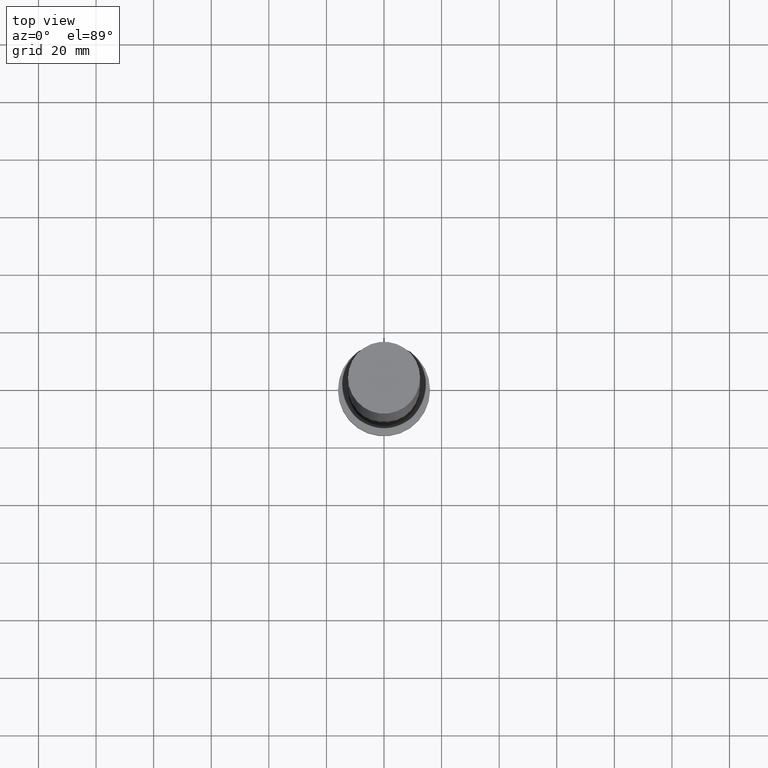
[diagram: clean part render]
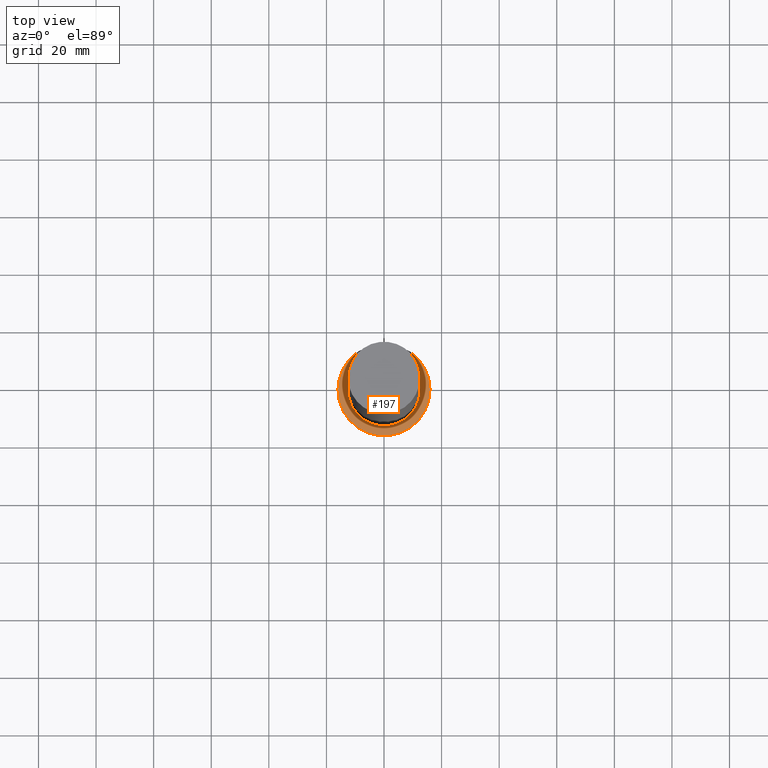
[diagram: same view with one face highlighted and labeled with its STEP entity id]
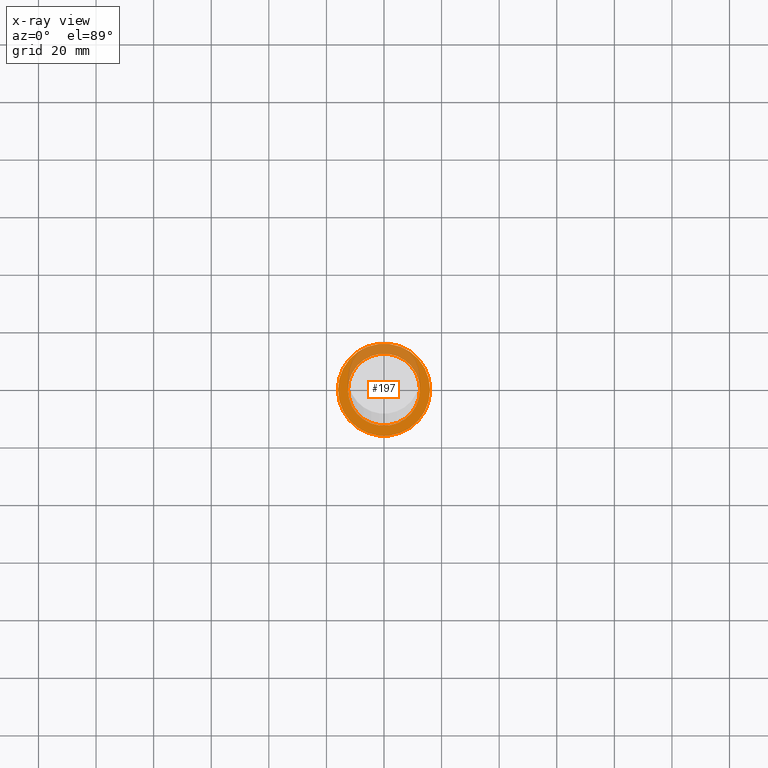
[diagram: x-ray of the same camera — body ghosted, the highlighted face saturated]
A machine part, top view. The second image highlights one B-rep face of the part: STEP entity #197.
The next image is the same camera in x-ray: the body ghosted, the highlighted face saturated — about 31% of this face is hidden behind the body in this view.
In plain terms, the highlighted planar face has unit normal (0, 0, 1).
Its self-contained STEP definition (entity closure, byte-faithful):
#1 = CARTESIAN_POINT ( 'NONE',  ( 12.50000000000000000, 1.530808498934191521E-15, 10.00000000000000000 ) ) ;
#7 = CIRCLE ( 'NONE', #88, 16.00000000000000000 ) ;
#11 = EDGE_LOOP ( 'NONE', ( #29, #112 ) ) ;
#20 = DIRECTION ( 'NONE',  ( 0.000000000000000000, 0.000000000000000000, 1.000000000000000000 ) ) ;
#21 = DIRECTION ( 'NONE',  ( 0.000000000000000000, 0.000000000000000000, 1.000000000000000000 ) ) ;
#29 = ORIENTED_EDGE ( 'NONE', *, *, #79, .T. ) ;
#30 = CARTESIAN_POINT ( 'NONE',  ( 0.000000000000000000, 0.000000000000000000, 10.00000000000000000 ) ) ;
#36 = CARTESIAN_POINT ( 'NONE',  ( 16.00000000000000000, 1.959434878635765131E-15, 10.00000000000000000 ) ) ;
#37 = CIRCLE ( 'NONE', #245, 16.00000000000000000 ) ;
#47 = ORIENTED_EDGE ( 'NONE', *, *, #218, .F. ) ;
#55 = CIRCLE ( 'NONE', #86, 12.50000000000000000 ) ;
#62 = VERTEX_POINT ( 'NONE', #95 ) ;
#65 = VERTEX_POINT ( 'NONE', #251 ) ;
#69 = FACE_OUTER_BOUND ( 'NONE', #11, .T. ) ;
#70 = DIRECTION ( 'NONE',  ( 1.000000000000000000, 0.000000000000000000, 0.000000000000000000 ) ) ;
#71 = DIRECTION ( 'NONE',  ( 1.000000000000000000, 0.000000000000000000, 0.000000000000000000 ) ) ;
#79 = EDGE_CURVE ( 'NONE', #62, #89, #37, .T. ) ;
#86 = AXIS2_PLACEMENT_3D ( 'NONE', #154, #20, #71 ) ;
#88 = AXIS2_PLACEMENT_3D ( 'NONE', #253, #21, #209 ) ;
#89 = VERTEX_POINT ( 'NONE', #36 ) ;
#92 = DIRECTION ( 'NONE',  ( 0.000000000000000000, 0.000000000000000000, 1.000000000000000000 ) ) ;
#95 = CARTESIAN_POINT ( 'NONE',  ( -16.00000000000000000, 0.000000000000000000, 10.00000000000000000 ) ) ;
#105 = EDGE_CURVE ( 'NONE', #65, #165, #55, .T. ) ;
#112 = ORIENTED_EDGE ( 'NONE', *, *, #243, .T. ) ;
#113 = DIRECTION ( 'NONE',  ( 1.000000000000000000, 0.000000000000000000, -0.000000000000000000 ) ) ;
#115 = DIRECTION ( 'NONE',  ( 0.000000000000000000, 0.000000000000000000, 1.000000000000000000 ) ) ;
#124 = AXIS2_PLACEMENT_3D ( 'NONE', #150, #92, #113 ) ;
#150 = CARTESIAN_POINT ( 'NONE',  ( 0.000000000000000000, 0.000000000000000000, 10.00000000000000000 ) ) ;
#154 = CARTESIAN_POINT ( 'NONE',  ( 0.000000000000000000, 0.000000000000000000, 10.00000000000000000 ) ) ;
#156 = FACE_BOUND ( 'NONE', #166, .T. ) ;
#165 = VERTEX_POINT ( 'NONE', #1 ) ;
#166 = EDGE_LOOP ( 'NONE', ( #244, #47 ) ) ;
#168 = DIRECTION ( 'NONE',  ( 1.000000000000000000, 0.000000000000000000, 0.000000000000000000 ) ) ;
#172 = DIRECTION ( 'NONE',  ( 0.000000000000000000, 0.000000000000000000, 1.000000000000000000 ) ) ;
#197 = ADVANCED_FACE ( 'NONE', ( #156, #69 ), #207, .T. ) ;
#201 = CIRCLE ( 'NONE', #240, 12.50000000000000000 ) ;
#207 = PLANE ( 'NONE',  #124 ) ;
#209 = DIRECTION ( 'NONE',  ( 1.000000000000000000, 0.000000000000000000, 0.000000000000000000 ) ) ;
#218 = EDGE_CURVE ( 'NONE', #165, #65, #201, .T. ) ;
#235 = CARTESIAN_POINT ( 'NONE',  ( 0.000000000000000000, 0.000000000000000000, 10.00000000000000000 ) ) ;
#240 = AXIS2_PLACEMENT_3D ( 'NONE', #30, #115, #168 ) ;
#243 = EDGE_CURVE ( 'NONE', #89, #62, #7, .T. ) ;
#244 = ORIENTED_EDGE ( 'NONE', *, *, #105, .F. ) ;
#245 = AXIS2_PLACEMENT_3D ( 'NONE', #235, #172, #70 ) ;
#251 = CARTESIAN_POINT ( 'NONE',  ( -12.50000000000000000, 0.000000000000000000, 10.00000000000000000 ) ) ;
#253 = CARTESIAN_POINT ( 'NONE',  ( 0.000000000000000000, 0.000000000000000000, 10.00000000000000000 ) ) ;